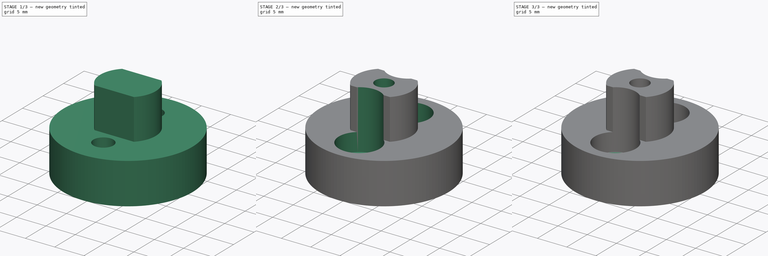
[diagram: build sequence overview — one tinted view per stage of 3, left to right]
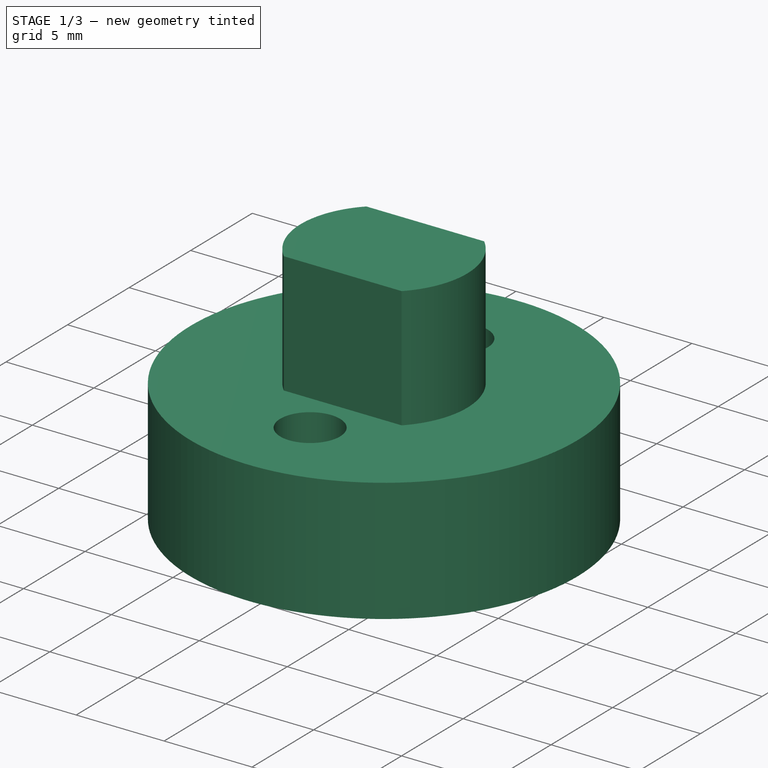
[diagram: stage 1 of 3 — iso view after this stage's code; geometry added in this stage tinted green]
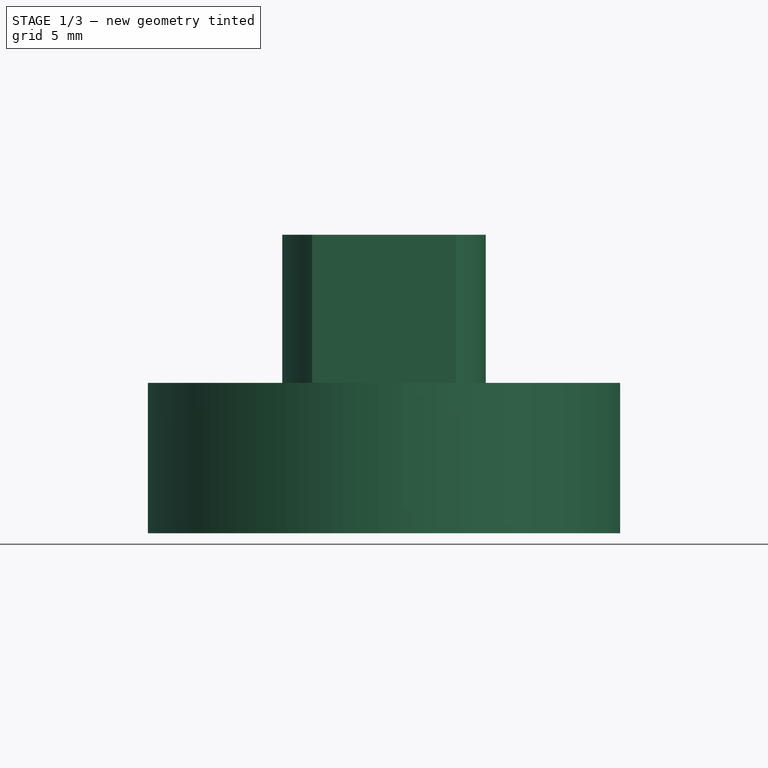
[diagram: stage 1 of 3 — front view after this stage's code; geometry added in this stage tinted green]
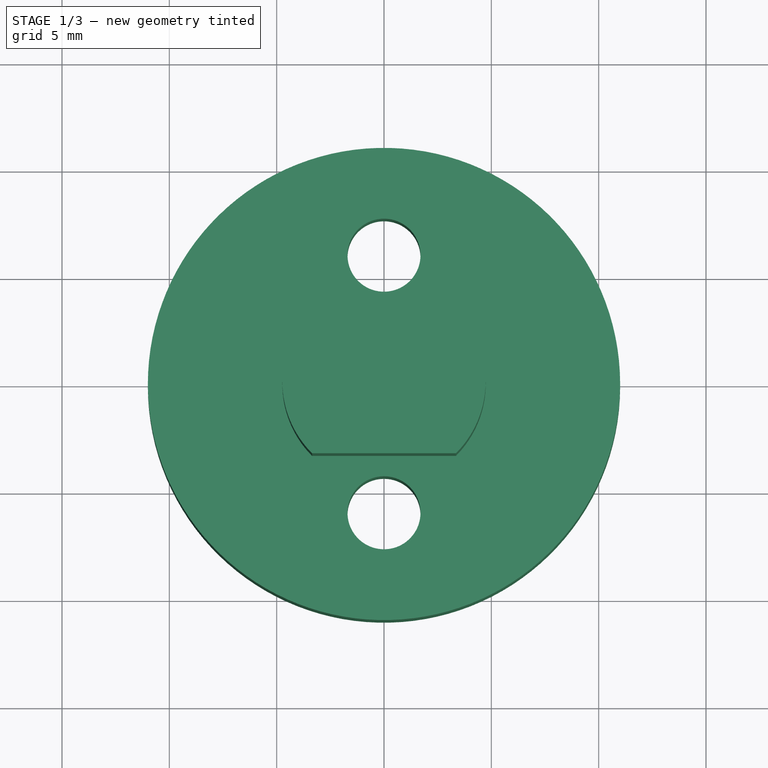
[diagram: stage 1 of 3 — top view after this stage's code; geometry added in this stage tinted green]
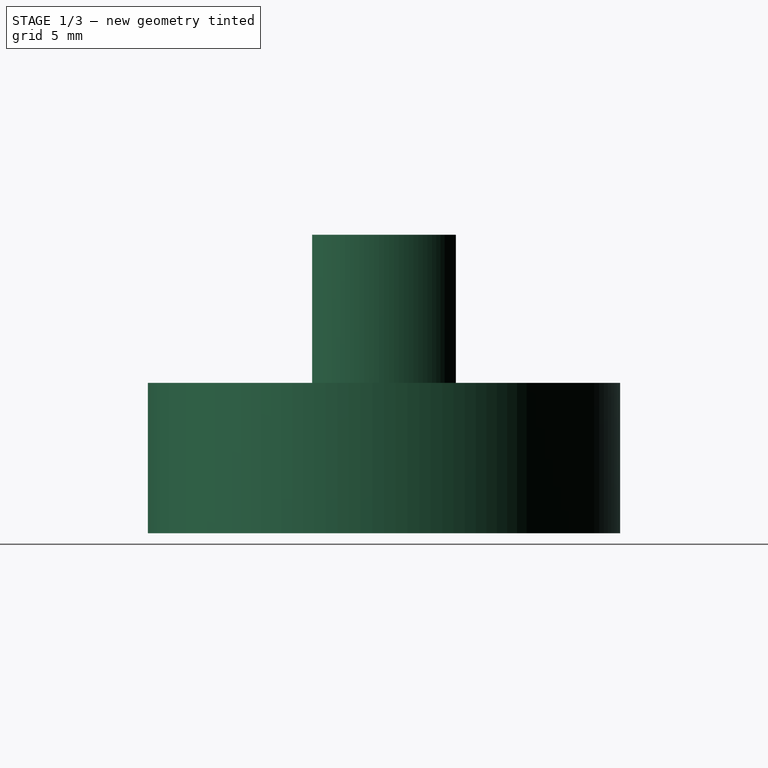
[diagram: stage 1 of 3 — right view after this stage's code; geometry added in this stage tinted green]
FCSTD DOCUMENT  (FreeCAD 0.16R6706 (Git))
Label: MotorAdaptorV2
License: All rights reserved
LicenseURL: http://en.wikipedia.org/wiki/All_rights_reserved
objects: Sketcher::SketchObject×5, PartDesign::Pocket×3, PartDesign::Pad×2, PartDesign::Chamfer×2
note: 17 computed .brp shape members not serialized (recipe doc carries the construction recipe); baked Part::Feature solids carry a one-line shape summary decoded from their .brp

FEATURE [Sketcher::SketchObject] Sketch  label="Base"
  sketch-geometry (18):
    g0: Circle CenterX=0 CenterY=0 CenterZ=0 NormalX=0 NormalY=0 NormalZ=1 Radius=11
    g1: Circle CenterX=0 CenterY=6 CenterZ=0 NormalX=0 NormalY=0 NormalZ=1 Radius=1.7
    g2: Circle [constr] CenterX=-6 CenterY=0 CenterZ=0 NormalX=0 NormalY=0 NormalZ=1 Radius=1.7
    g3: Circle [constr] CenterX=6 CenterY=0 CenterZ=0 NormalX=0 NormalY=0 NormalZ=1 Radius=1.7
    g4: Circle CenterX=0 CenterY=-6 CenterZ=0 NormalX=0 NormalY=0 NormalZ=1 Radius=1.7
    g5: Circle [constr] CenterX=0 CenterY=0 CenterZ=0 NormalX=0 NormalY=0 NormalZ=1 Radius=6
    g6: Circle [constr] CenterX=0 CenterY=0 CenterZ=0 NormalX=0 NormalY=0 NormalZ=1 Radius=2.2
    g7: LineSegment [constr] StartX=4.94975 StartY=9.33381 StartZ=0 EndX=9.33381 EndY=4.94975 EndZ=0
    g8: LineSegment [constr] StartX=4.94975 StartY=9.33381 StartZ=0 EndX=3.3234 EndY=7.70746 EndZ=0
    g9: LineSegment [constr] StartX=9.33381 StartY=4.94975 StartZ=0 EndX=7.70746 EndY=3.3234 EndZ=0
    g10: LineSegment [constr] StartX=3.3234 StartY=7.70746 StartZ=0 EndX=7.70746 EndY=3.3234 EndZ=0
    g11: LineSegment [constr] StartX=0 StartY=0 StartZ=0 EndX=7.77817 EndY=7.77817 EndZ=0
    g12: GeomPoint [constr] X=5.51543 Y=5.51543 Z=0
    g13: GeomPoint [constr] X=7.14178 Y=7.14178 Z=0
    g14: LineSegment [constr] StartX=-7.70746 StartY=-3.3234 StartZ=0 EndX=-3.3234 EndY=-7.70746 EndZ=0
    g15: LineSegment [constr] StartX=-9.33381 StartY=-4.94975 StartZ=0 EndX=-4.94975 EndY=-9.33381 EndZ=0
    g16: LineSegment [constr] StartX=-7.70746 StartY=-3.3234 StartZ=0 EndX=-9.33381 EndY=-4.94975 EndZ=0
    g17: LineSegment [constr] StartX=-4.94975 StartY=-9.33381 StartZ=0 EndX=-3.3234 EndY=-7.70746 EndZ=0
  constraints (45):
    c: Coincident(g0,g-1)
    c: Radius(g0) = 11
    c: PointOnObject(g2,g-1)
    c: PointOnObject(g3,g-1)
    c: PointOnObject(g1,g-2)
    c: PointOnObject(g4,g-2)
    c: Radius(g4) = 1.7
    c: Equal(g4,g3)
    c: Equal(g4,g1)
    c: Equal(g4,g2)
    c: Coincident(g5,g-1)
    c: Radius(g5) = 6
    c: PointOnObject(g1,g5)
    c: PointOnObject(g2,g5)
    c: PointOnObject(g4,g5)
    c: PointOnObject(g3,g5)
    c: Coincident(g6,g-1)
    c: Radius(g6) = 2.2
    c: Coincident(g8,g7)
    c: Coincident(g9,g7)
    c: Coincident(g10,g8)
    c: Coincident(g10,g9)
    c: Angle(g9,g10) = 1.5708
    c: Angle(g8,g7) = 1.5708
    c: Angle(g10,g8) = 1.5708
    c: Distance(g7,g7) = 6.2
    c: Distance(g9,g7) = 2.3
    c: Coincident(g11,g-1)
    c: PointOnObject(g11,g0)
    c: PointOnObject(g12,g10)
    c: PointOnObject(g12,g11)
    c: Symmetric(g9,g8,g12)
    c: PointOnObject(g13,g11)
    c: PointOnObject(g13,g7)
    c: Symmetric(g7,g7,g13)
    c: Angle(g-1,g11) = 0.785398
    c: Distance(g-1,g12) = 7.8
    c: Coincident(g16,g14)
    c: Coincident(g16,g15)
    c: Coincident(g17,g15)
    c: Coincident(g17,g14)
    c: Symmetric(g14,g8,g-1)
    c: Symmetric(g14,g9,g-1)
    c: Symmetric(g15,g7,g-1)
    c: Symmetric(g15,g7,g-1)
FEATURE [PartDesign::Pad] Pad
  Length = 7
  Length2 = 100
  Sketch = -> Sketch
  Type = 0
FEATURE [Sketcher::SketchObject] Sketch004  label="RotationLock"
  Placement = pos=(0,0,7) rot=(0,0,1;0rad)
  Support = -> Pad [Face5]
  sketch-geometry (4):
    g0: LineSegment StartX=-3.35 StartY=3.35 StartZ=0 EndX=3.35 EndY=3.35 EndZ=0
    g1: LineSegment StartX=3.35 StartY=-3.35 StartZ=0 EndX=-3.35 EndY=-3.35 EndZ=0
    g2: ArcOfCircle CenterX=0 CenterY=0 CenterZ=0 NormalX=0 NormalY=0 NormalZ=1 Radius=4.73762 StartAngle=2.35619 EndAngle=3.92699
    g3: ArcOfCircle CenterX=0 CenterY=0 CenterZ=0 NormalX=0 NormalY=0 NormalZ=1 Radius=4.73762 StartAngle=5.49779 EndAngle=7.06858
  constraints (12):
    c: Horizontal(g0)
    c: Horizontal(g1)
    c: DistanceX(g0,g0) = 6.7
    c: Coincident(g3,g-1)
    c: DistanceY(g1,g0) = 6.7
    c: Equal(g2,g3)
    c: Coincident(g2,g-1)
    c: Coincident(g1,g2)
    c: Coincident(g2,g0)
    c: Coincident(g1,g3)
    c: Coincident(g3,g0)
    c: Equal(g0,g1)
FEATURE [PartDesign::Pad] Pad001
  Length = 6.9
  Length2 = 100
  Sketch = -> Sketch004
  Type = 0
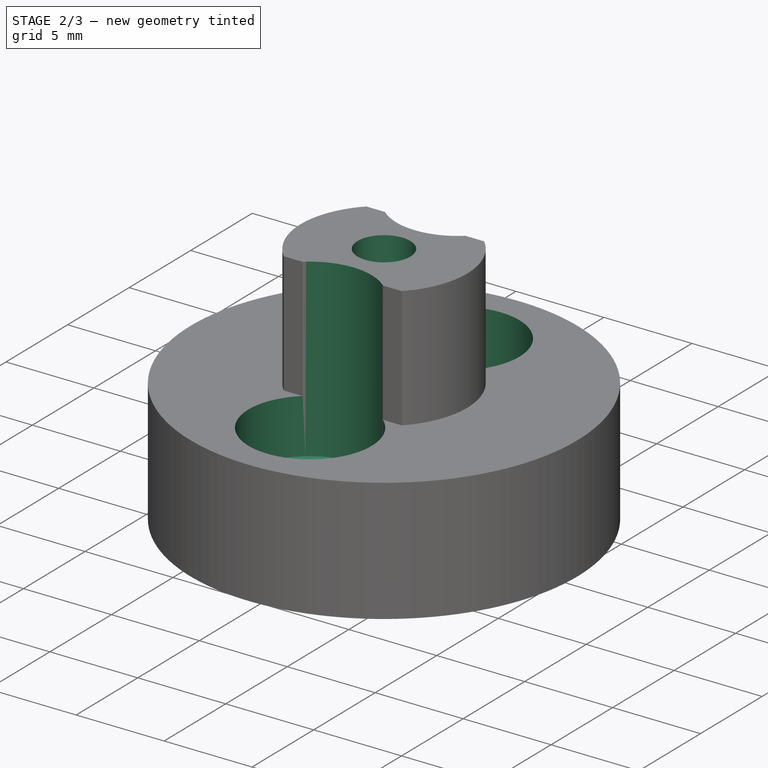
[diagram: stage 2 of 3 — iso view after this stage's code; geometry added in this stage tinted green]
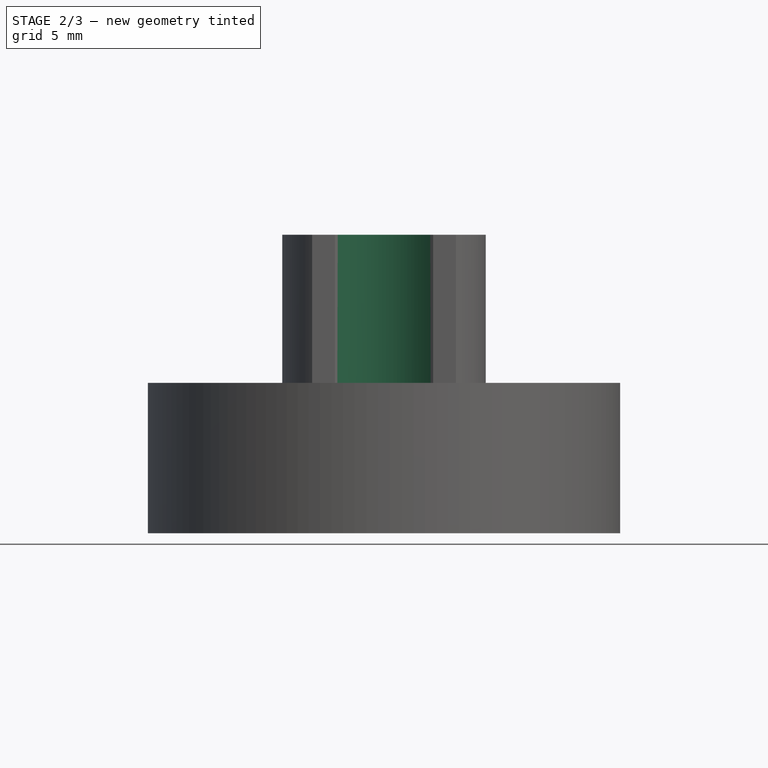
[diagram: stage 2 of 3 — front view after this stage's code; geometry added in this stage tinted green]
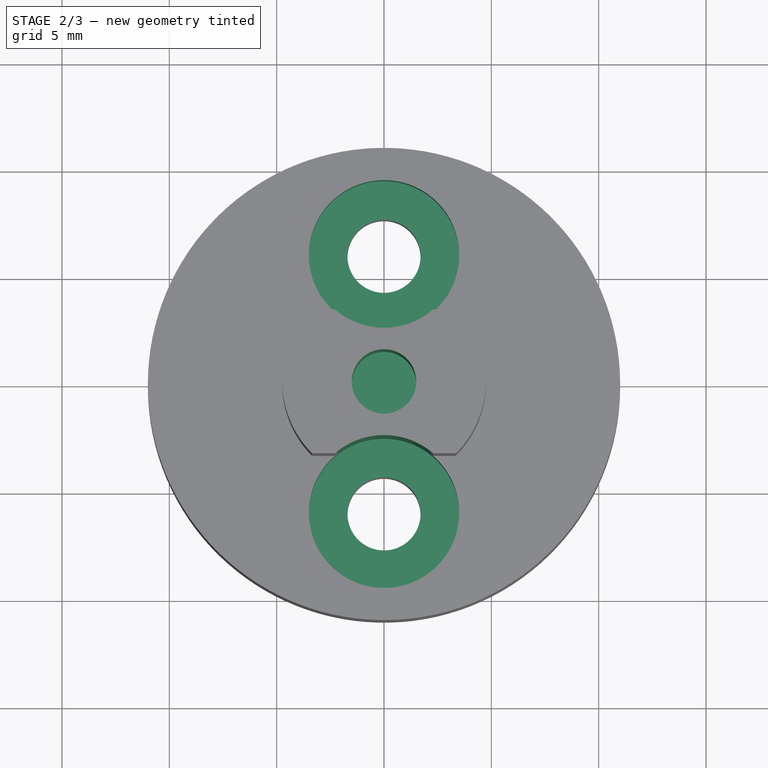
[diagram: stage 2 of 3 — top view after this stage's code; geometry added in this stage tinted green]
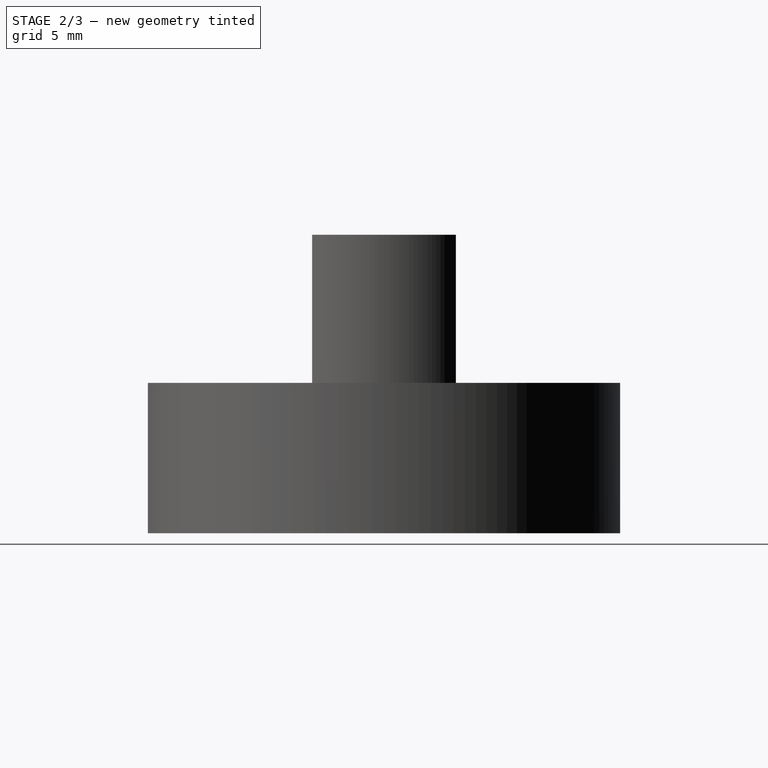
[diagram: stage 2 of 3 — right view after this stage's code; geometry added in this stage tinted green]
FEATURE [Sketcher::SketchObject] Sketch006  label="ChamferResess"
  Placement = pos=(0,0,13.9) rot=(0,0,1;0rad)
  Support = -> Pad001 [Face10]
  sketch-geometry (18):
    g0: Circle [constr] CenterX=0 CenterY=0 CenterZ=0 NormalX=0 NormalY=0 NormalZ=1 Radius=12
    g1: Circle CenterX=0 CenterY=6 CenterZ=0 NormalX=0 NormalY=0 NormalZ=1 Radius=3.5
    g2: Circle [constr] CenterX=-6 CenterY=0 CenterZ=0 NormalX=0 NormalY=0 NormalZ=1 Radius=3.5
    g3: Circle [constr] CenterX=6 CenterY=0 CenterZ=0 NormalX=0 NormalY=0 NormalZ=1 Radius=3.5
    g4: Circle CenterX=0 CenterY=-6 CenterZ=0 NormalX=0 NormalY=0 NormalZ=1 Radius=3.5
    g5: Circle [constr] CenterX=0 CenterY=0 CenterZ=0 NormalX=0 NormalY=0 NormalZ=1 Radius=6
    g6: Circle [constr] CenterX=0 CenterY=0 CenterZ=0 NormalX=0 NormalY=0 NormalZ=1 Radius=2.2
    g7: LineSegment [constr] StartX=4.94975 StartY=9.33381 StartZ=0 EndX=9.33381 EndY=4.94975 EndZ=0
    g8: LineSegment [constr] StartX=4.94975 StartY=9.33381 StartZ=0 EndX=3.3234 EndY=7.70746 EndZ=0
    g9: LineSegment [constr] StartX=9.33381 StartY=4.94975 StartZ=0 EndX=7.70746 EndY=3.3234 EndZ=0
    g10: LineSegment [constr] StartX=3.3234 StartY=7.70746 StartZ=0 EndX=7.70746 EndY=3.3234 EndZ=0
    g11: LineSegment [constr] StartX=0 StartY=0 StartZ=0 EndX=8.48528 EndY=8.48528 EndZ=0
    g12: GeomPoint [constr] X=5.51543 Y=5.51543 Z=0
    g13: GeomPoint [constr] X=7.14178 Y=7.14178 Z=0
    g14: LineSegment [constr] StartX=-7.70746 StartY=-3.3234 StartZ=0 EndX=-3.3234 EndY=-7.70746 EndZ=0
    g15: LineSegment [constr] StartX=-9.33381 StartY=-4.94975 StartZ=0 EndX=-4.94975 EndY=-9.33381 EndZ=0
    g16: LineSegment [constr] StartX=-7.70746 StartY=-3.3234 StartZ=0 EndX=-9.33381 EndY=-4.94975 EndZ=0
    g17: LineSegment [constr] StartX=-4.94975 StartY=-9.33381 StartZ=0 EndX=-3.3234 EndY=-7.70746 EndZ=0
  constraints (45):
    c: Coincident(g0,g-1)
    c: Radius(g0) = 12
    c: PointOnObject(g2,g-1)
    c: PointOnObject(g3,g-1)
    c: PointOnObject(g1,g-2)
    c: PointOnObject(g4,g-2)
    c: Radius(g4) = 3.5
    c: Equal(g4,g3)
    c: Equal(g4,g1)
    c: Equal(g4,g2)
    c: Coincident(g5,g-1)
    c: Radius(g5) = 6
    c: PointOnObject(g1,g5)
    c: PointOnObject(g2,g5)
    c: PointOnObject(g4,g5)
    c: PointOnObject(g3,g5)
    c: Coincident(g6,g-1)
    c: Radius(g6) = 2.2
    c: Coincident(g8,g7)
    c: Coincident(g9,g7)
    c: Coincident(g10,g8)
    c: Coincident(g10,g9)
    c: Angle(g9,g10) = 1.5708
    c: Angle(g8,g7) = 1.5708
    c: Angle(g10,g8) = 1.5708
    c: Distance(g7,g7) = 6.2
    c: Distance(g9,g7) = 2.3
    c: Coincident(g11,g-1)
    c: PointOnObject(g11,g0)
    c: PointOnObject(g12,g10)
    c: PointOnObject(g12,g11)
    c: Symmetric(g9,g8,g12)
    c: PointOnObject(g13,g11)
    c: PointOnObject(g13,g7)
    c: Symmetric(g7,g7,g13)
    c: Angle(g-1,g11) = 0.785398
    c: Distance(g-1,g12) = 7.8
    c: Coincident(g16,g14)
    c: Coincident(g16,g15)
    c: Coincident(g17,g15)
    c: Coincident(g17,g14)
    c: Symmetric(g14,g8,g-1)
    c: Symmetric(g14,g9,g-1)
    c: Symmetric(g15,g7,g-1)
    c: Symmetric(g15,g7,g-1)
FEATURE [PartDesign::Pocket] Pocket003
  Length = 10
  Sketch = -> Sketch006
  Type = 0
FEATURE [Sketcher::SketchObject] Sketch007  label="MotorShaft"
  Placement = pos=(0,0,0) rot=(1,0,0;3.14159rad)
  Support = -> Pocket003 [Face2]
  sketch-geometry (1):
    g0: Circle CenterX=0 CenterY=0 CenterZ=0 NormalX=0 NormalY=0 NormalZ=1 Radius=2.2
  constraints (2):
    c: Coincident(g0,g-1)
    c: Radius(g0) = 2.2
FEATURE [PartDesign::Pocket] Pocket
  Length = 6
  Sketch = -> Sketch007
  Type = 0
FEATURE [Sketcher::SketchObject] Sketch003  label="CentralScrewHole"
  Placement = pos=(0,0,13.9) rot=(0,0,1;0rad)
  Support = -> Pocket [Face26]
  sketch-geometry (6):
    g0: Circle [constr] CenterX=0 CenterY=6 CenterZ=0 NormalX=0 NormalY=0 NormalZ=1 Radius=2.7
    g1: Circle [constr] CenterX=0 CenterY=0 CenterZ=0 NormalX=0 NormalY=0 NormalZ=1 Radius=6
    g2: Circle [constr] CenterX=-6 CenterY=0 CenterZ=0 NormalX=0 NormalY=0 NormalZ=1 Radius=2.7
    g3: Circle [constr] CenterX=0 CenterY=-6 CenterZ=0 NormalX=0 NormalY=0 NormalZ=1 Radius=2.7
    g4: Circle [constr] CenterX=6 CenterY=0 CenterZ=0 NormalX=0 NormalY=0 NormalZ=1 Radius=2.7
    g5: Circle CenterX=0 CenterY=0 CenterZ=0 NormalX=0 NormalY=0 NormalZ=1 Radius=1.5
  constraints (16):
    c: PointOnObject(g0,g-2)
    c: Coincident(g1,g-1)
    c: Radius(g1) = 6
    c: PointOnObject(g0,g1)
    c: PointOnObject(g2,g1)
    c: PointOnObject(g2,g-1)
    c: PointOnObject(g3,g1)
    c: PointOnObject(g3,g-2)
    c: PointOnObject(g4,g1)
    c: PointOnObject(g4,g-1)
    c: Equal(g4,g3)
    c: Radius(g2) = 2.7
    c: Equal(g2,g3)
    c: Equal(g2,g0)
    c: Coincident(g5,g-1)
    c: Radius(g5) = 1.5
FEATURE [PartDesign::Pocket] Pocket004
  Length = 7.3
  Sketch = -> Sketch003
  Type = 0
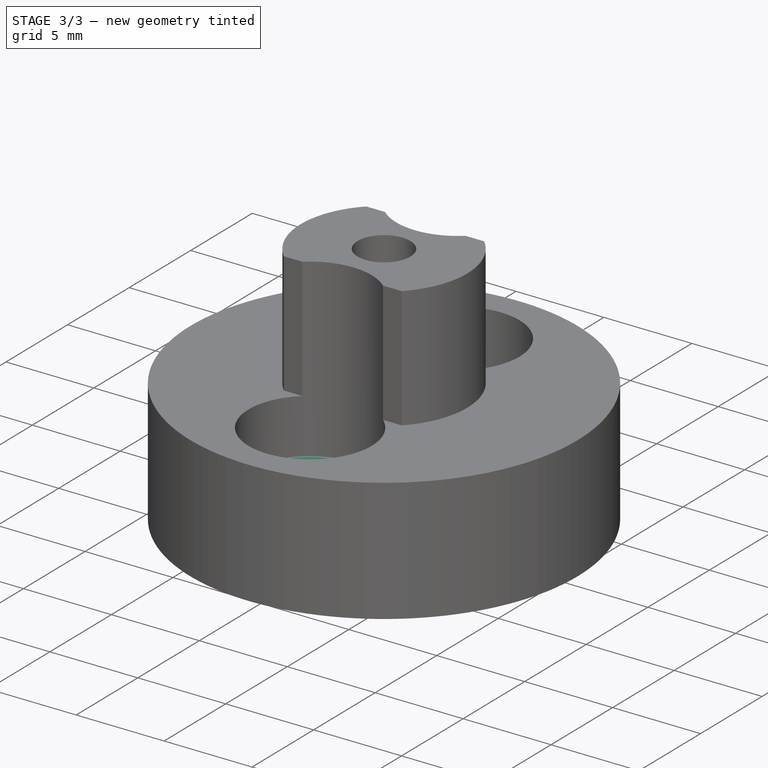
[diagram: stage 3 of 3 — iso view after this stage's code; geometry added in this stage tinted green]
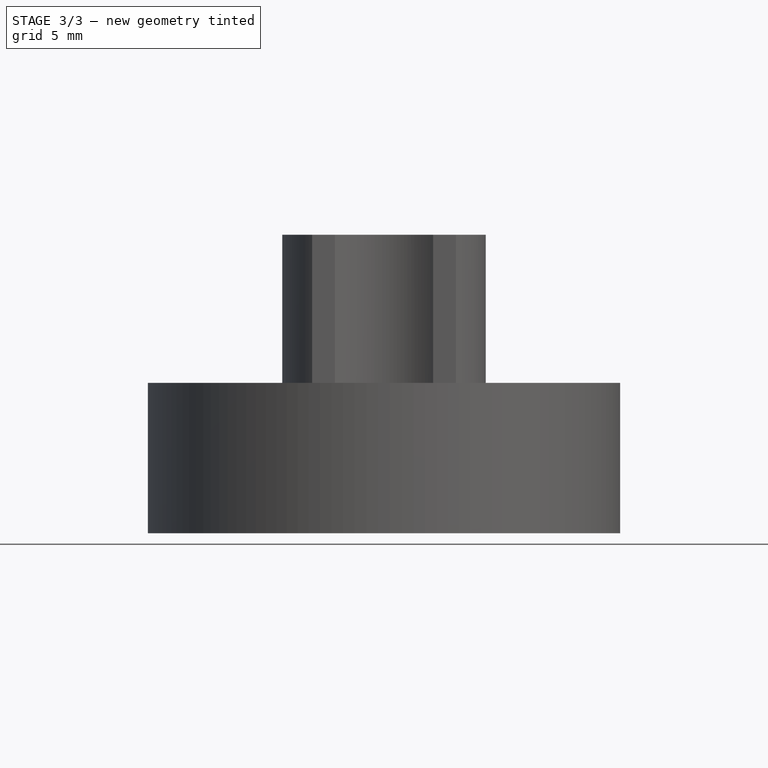
[diagram: stage 3 of 3 — front view after this stage's code; geometry added in this stage tinted green]
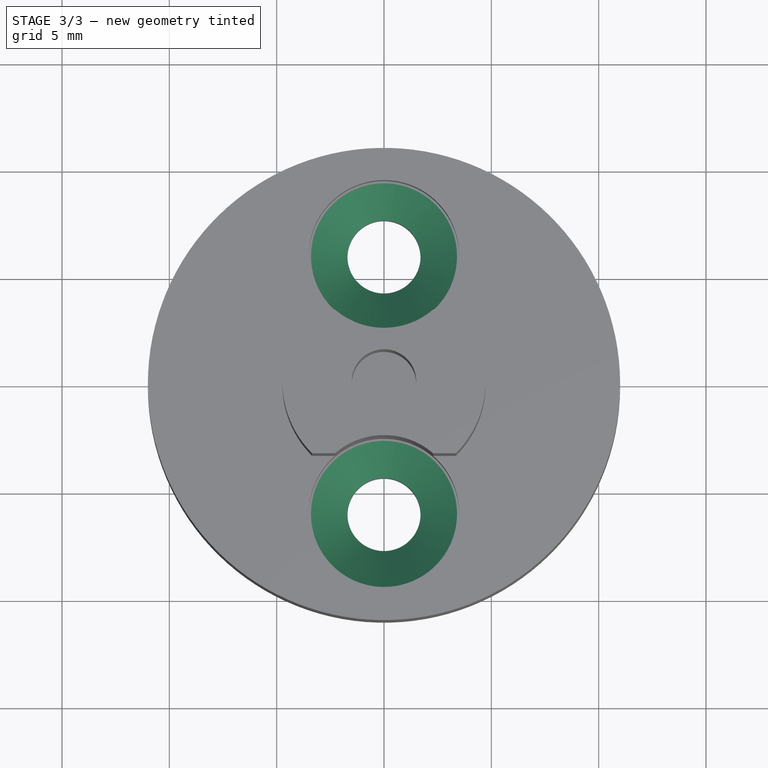
[diagram: stage 3 of 3 — top view after this stage's code; geometry added in this stage tinted green]
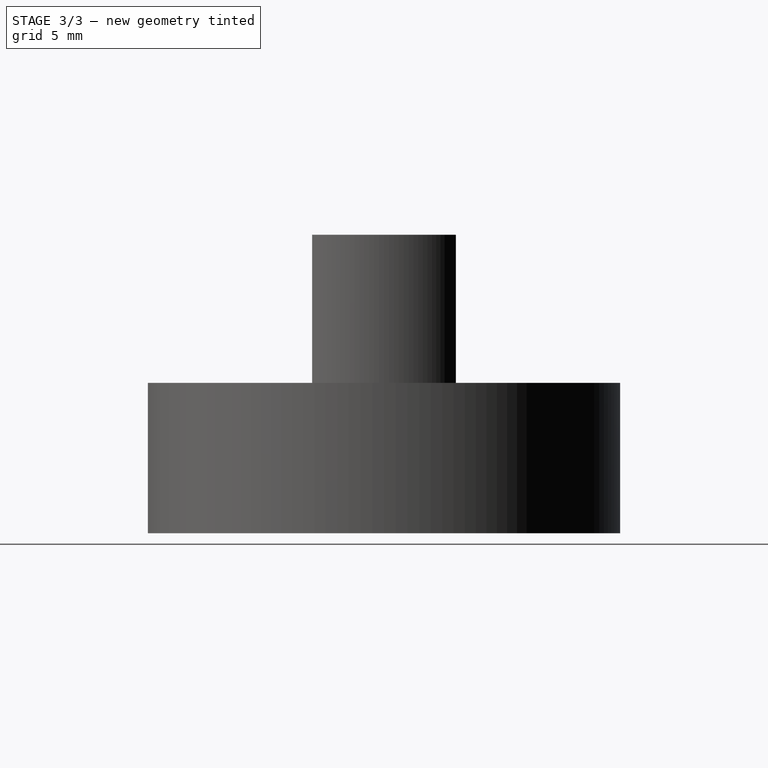
[diagram: stage 3 of 3 — right view after this stage's code; geometry added in this stage tinted green]
FEATURE [PartDesign::Chamfer] Chamfer
  Base = -> Pocket004 [Edge18]
  Size = 1.7
FEATURE [PartDesign::Chamfer] Chamfer001
  Base = -> Chamfer [Edge15]
  Size = 1.7
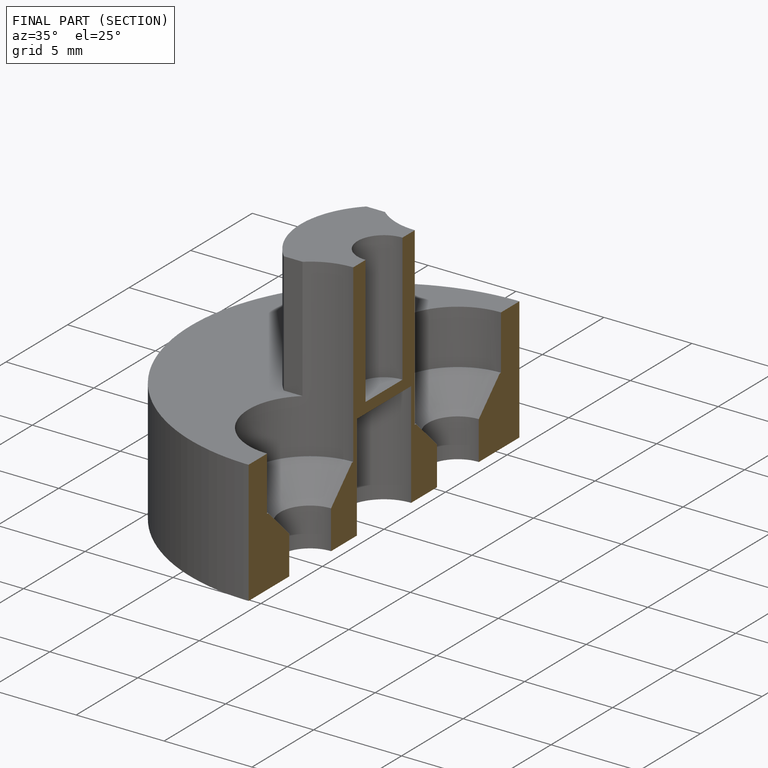
[diagram: finished part — half-section view (interior)]
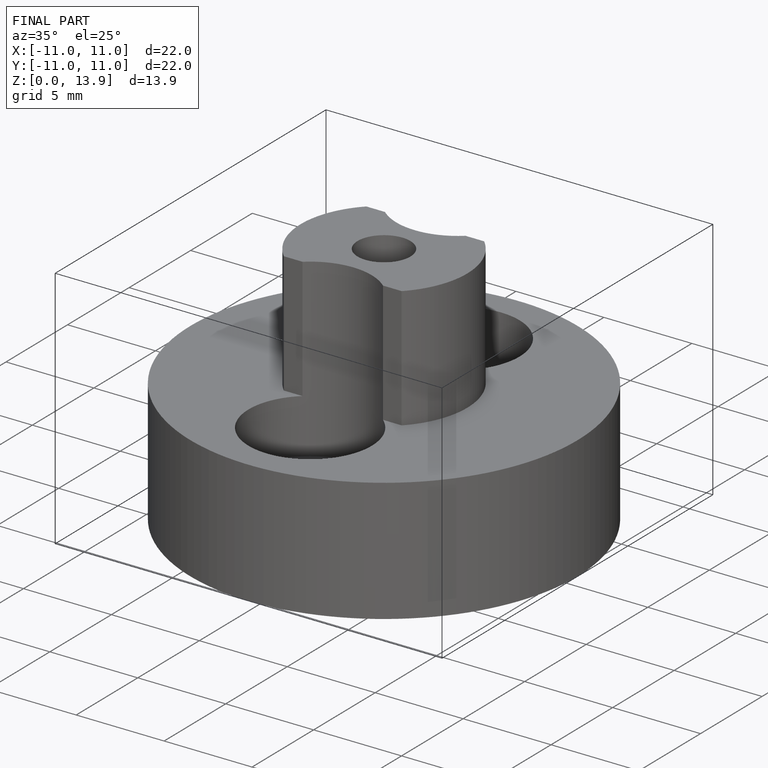
[diagram: finished part — iso view with bounding-box wireframe]
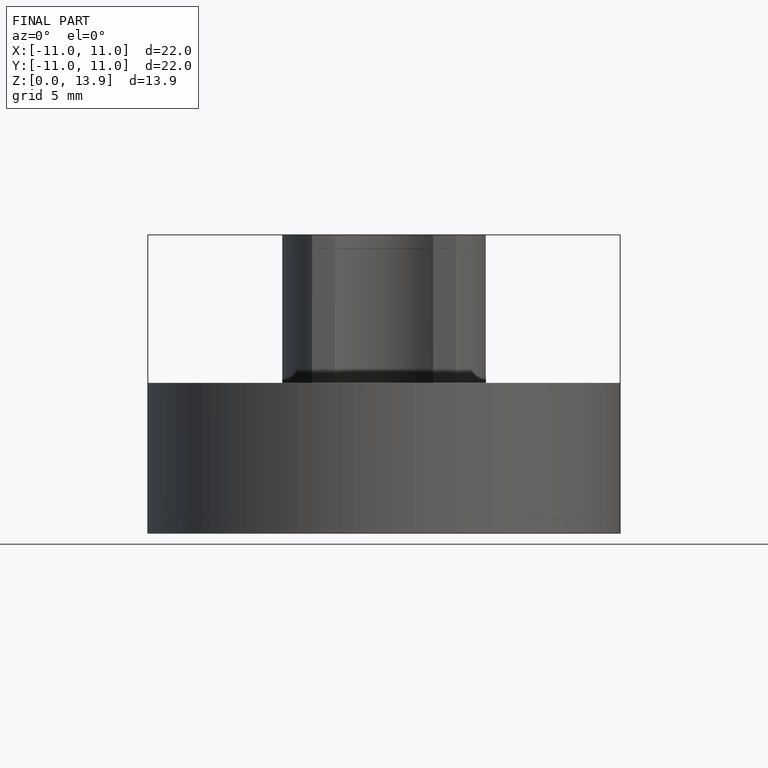
[diagram: finished part — front view with bounding-box wireframe]
